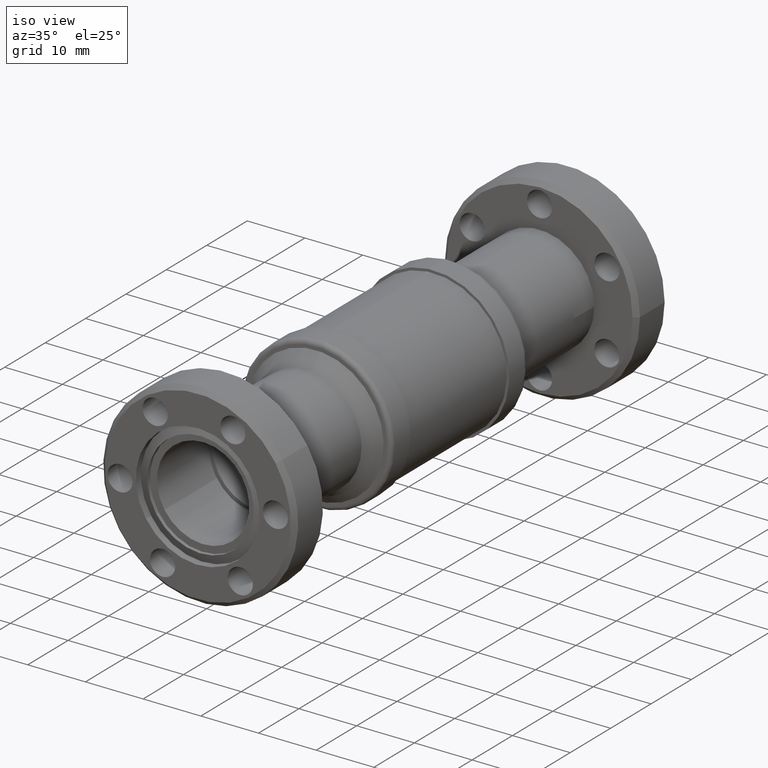
[diagram: clean part render]
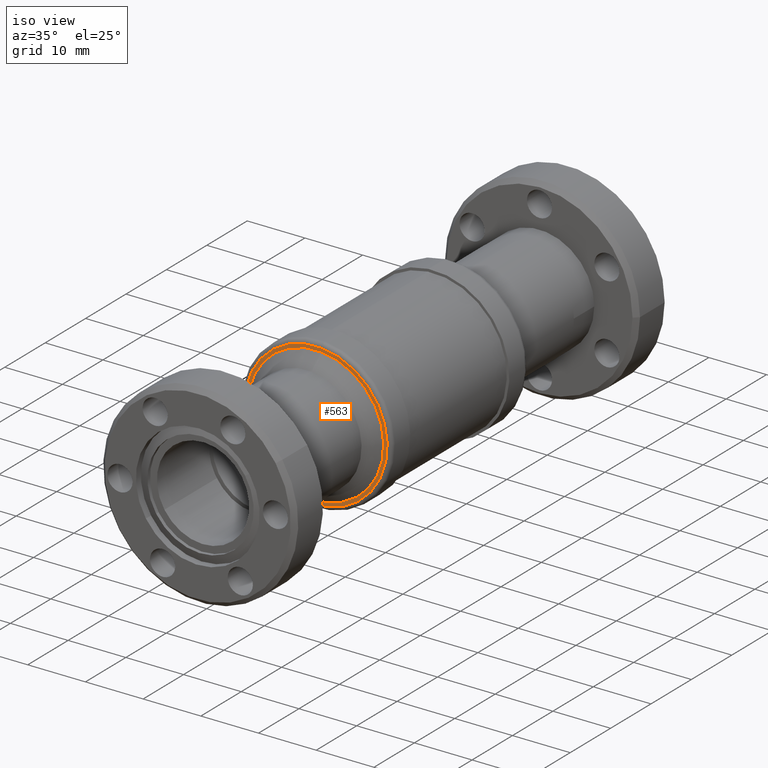
[diagram: same view with one face highlighted and labeled with its STEP entity id]
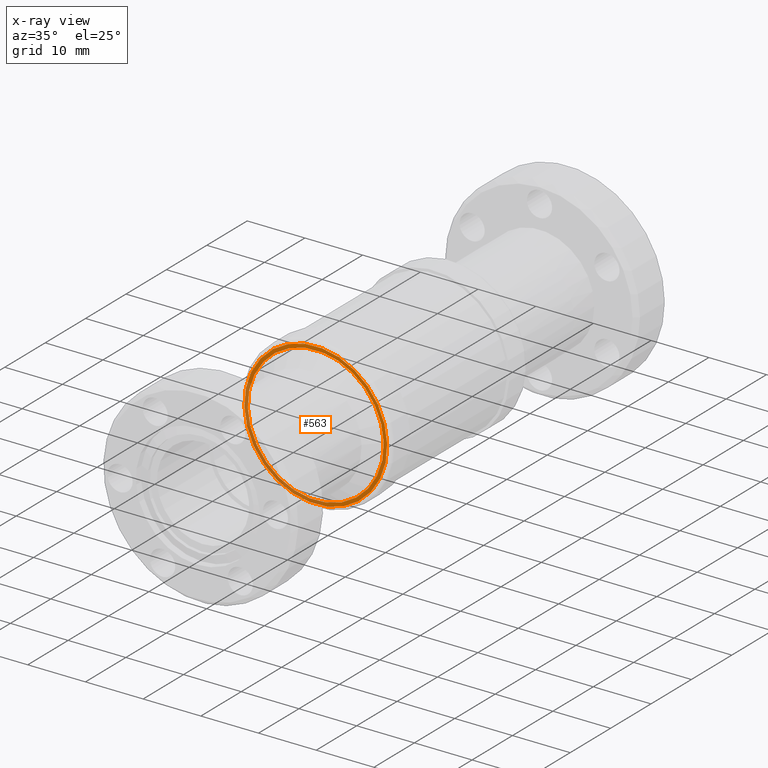
[diagram: x-ray of the same camera — body ghosted, the highlighted face saturated]
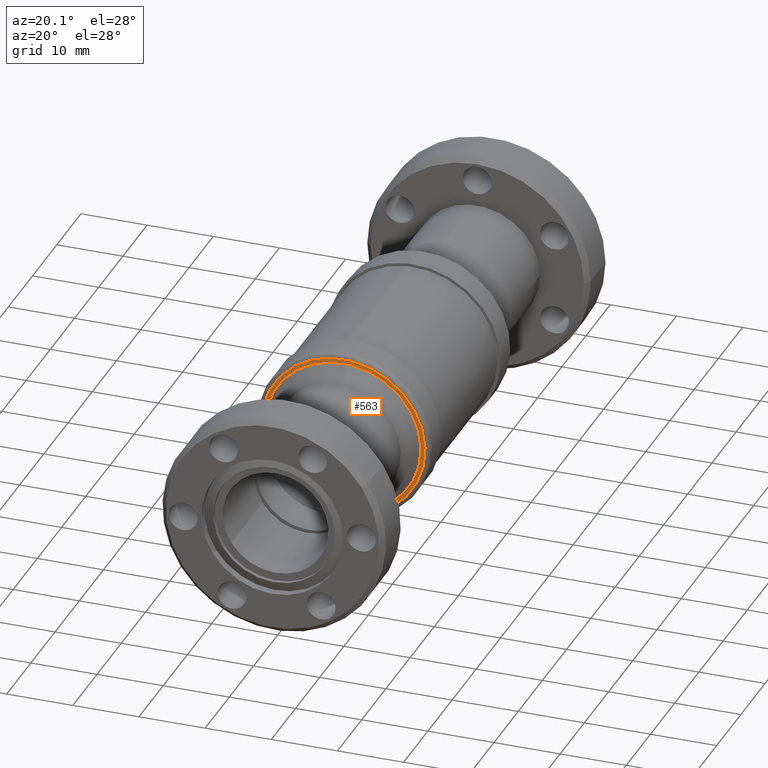
[diagram: same view with one face highlighted and labeled with its STEP entity id]
A machine part, iso view. The second image highlights one B-rep face of the part: STEP entity #563.
The next image is the same camera in x-ray: the body ghosted, the highlighted face saturated — about 31% of this face is hidden behind the body in this view.
A second angle (auxiliary view) of the same face is appended — the face is thin or edge-on in the first view.
In plain terms, the highlighted planar face has unit normal (0, -1, -0).
Its self-contained STEP definition (entity closure, byte-faithful):
#118 = DIRECTION ( 'NONE',  ( 0.0000000000000000000, 1.000000000000000000, 0.0000000000000000000 ) ) ;
#167 = DIRECTION ( 'NONE',  ( 0.08622518499638290312, 0.0000000000000000000, 0.9962756734319772045 ) ) ;
#276 = VERTEX_POINT ( 'NONE', #489 ) ;
#305 = DIRECTION ( 'NONE',  ( 0.08622518499638290312, 0.0000000000000000000, 0.9962756734319770935 ) ) ;
#307 = FACE_OUTER_BOUND ( 'NONE', #1625, .T. ) ;
#328 = DIRECTION ( 'NONE',  ( 0.08622518499638290312, 0.0000000000000000000, 0.9962756734319772045 ) ) ;
#347 = ORIENTED_EDGE ( 'NONE', *, *, #525, .F. ) ;
#408 = EDGE_CURVE ( 'NONE', #557, #3298, #1019, .T. ) ;
#489 = CARTESIAN_POINT ( 'NONE',  ( 0.03998375675149975356, -2.479999999999999982, 0.4619861840320982349 ) ) ;
#525 = EDGE_CURVE ( 'NONE', #3298, #557, #1769, .T. ) ;
#540 = PLANE ( 'NONE',  #2564 ) ;
#557 = VERTEX_POINT ( 'NONE', #849 ) ;
#563 = ADVANCED_FACE ( 'NONE', ( #1810, #307 ), #540, .T. ) ;
#583 = CARTESIAN_POINT ( 'NONE',  ( 1.102182119232617048E-16, -2.480000000000000426, 0.0000000000000000000 ) ) ;
#599 = CARTESIAN_POINT ( 'NONE',  ( 1.102182119232617048E-16, -2.479999999999999982, 0.0000000000000000000 ) ) ;
#811 = VERTEX_POINT ( 'NONE', #2369 ) ;
#849 = CARTESIAN_POINT ( 'NONE',  ( 0.04203477768573677525, -2.480000000000000426, 0.4856843907980888386 ) ) ;
#984 = EDGE_LOOP ( 'NONE', ( #2716, #3188 ) ) ;
#1019 = CIRCLE ( 'NONE', #3226, 0.4874999999999999889 ) ;
#1326 = CARTESIAN_POINT ( 'NONE',  ( -0.4856843907980886166, -2.480000000000000426, 0.04203477768573665729 ) ) ;
#1414 = ORIENTED_EDGE ( 'NONE', *, *, #408, .F. ) ;
#1608 = CARTESIAN_POINT ( 'NONE',  ( 1.102182119232617048E-16, -2.479999999999999982, 0.0000000000000000000 ) ) ;
#1625 = EDGE_LOOP ( 'NONE', ( #1414, #347 ) ) ;
#1769 = CIRCLE ( 'NONE', #3283, 0.4874999999999999889 ) ;
#1810 = FACE_BOUND ( 'NONE', #984, .T. ) ;
#1986 = EDGE_CURVE ( 'NONE', #811, #276, #3263, .T. ) ;
#2357 = DIRECTION ( 'NONE',  ( 0.0000000000000000000, -1.000000000000000000, -0.0000000000000000000 ) ) ;
#2369 = CARTESIAN_POINT ( 'NONE',  ( -0.03998375675149946906, -2.479999999999999982, -0.4619861840320982349 ) ) ;
#2373 = AXIS2_PLACEMENT_3D ( 'NONE', #1608, #2643, #328 ) ;
#2388 = DIRECTION ( 'NONE',  ( 0.0000000000000000000, 1.000000000000000000, 0.0000000000000000000 ) ) ;
#2448 = DIRECTION ( 'NONE',  ( 0.0000000000000000000, 1.000000000000000000, 0.0000000000000000000 ) ) ;
#2498 = AXIS2_PLACEMENT_3D ( 'NONE', #599, #2388, #167 ) ;
#2564 = AXIS2_PLACEMENT_3D ( 'NONE', #1326, #2357, #2571 ) ;
#2571 = DIRECTION ( 'NONE',  ( -0.08622518499638288925, 0.0000000000000000000, -0.9962756734319769825 ) ) ;
#2578 = EDGE_CURVE ( 'NONE', #276, #811, #2816, .T. ) ;
#2643 = DIRECTION ( 'NONE',  ( 0.0000000000000000000, 1.000000000000000000, 0.0000000000000000000 ) ) ;
#2646 = CARTESIAN_POINT ( 'NONE',  ( -0.04203477768573649076, -2.480000000000000426, -0.4856843907980888386 ) ) ;
#2716 = ORIENTED_EDGE ( 'NONE', *, *, #2578, .T. ) ;
#2756 = CARTESIAN_POINT ( 'NONE',  ( 1.102182119232617048E-16, -2.480000000000000426, 0.0000000000000000000 ) ) ;
#2816 = CIRCLE ( 'NONE', #2373, 0.4637132034355964105 ) ;
#3016 = DIRECTION ( 'NONE',  ( 0.08622518499638290312, 0.0000000000000000000, 0.9962756734319770935 ) ) ;
#3188 = ORIENTED_EDGE ( 'NONE', *, *, #1986, .T. ) ;
#3226 = AXIS2_PLACEMENT_3D ( 'NONE', #583, #118, #305 ) ;
#3263 = CIRCLE ( 'NONE', #2498, 0.4637132034355964105 ) ;
#3283 = AXIS2_PLACEMENT_3D ( 'NONE', #2756, #2448, #3016 ) ;
#3298 = VERTEX_POINT ( 'NONE', #2646 ) ;